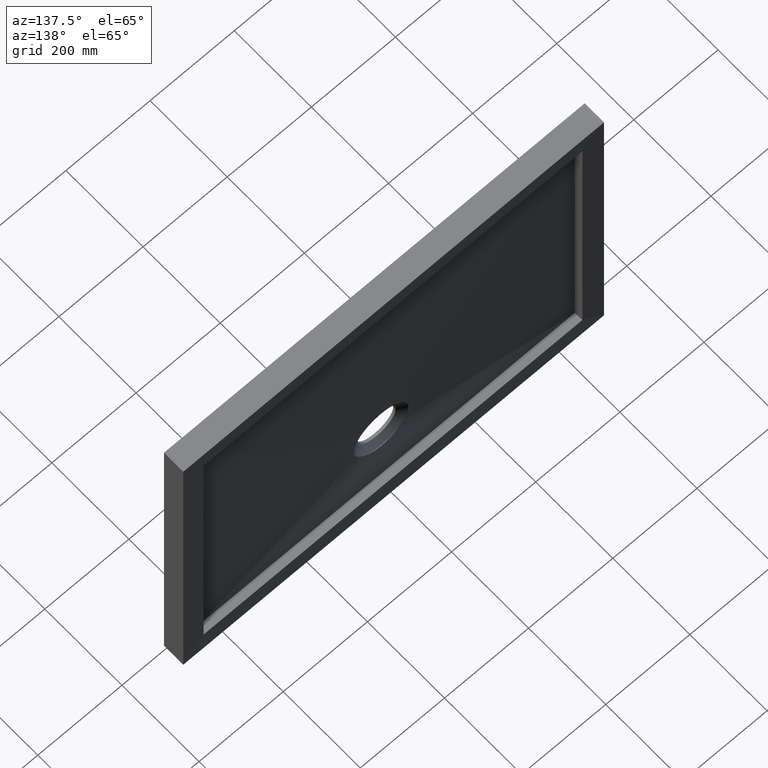
[diagram: clean part render]
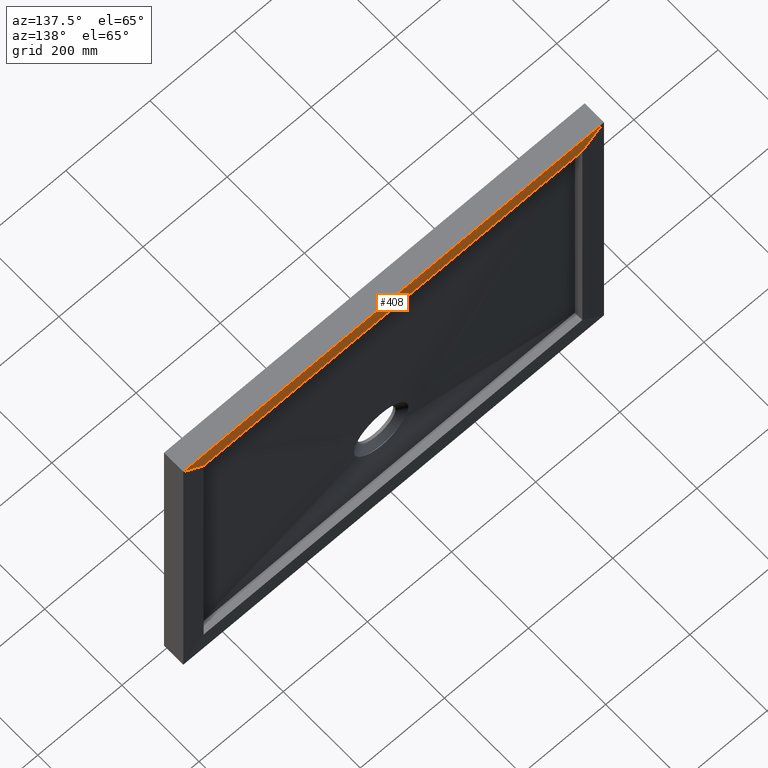
[diagram: same view with one face highlighted and labeled with its STEP entity id]
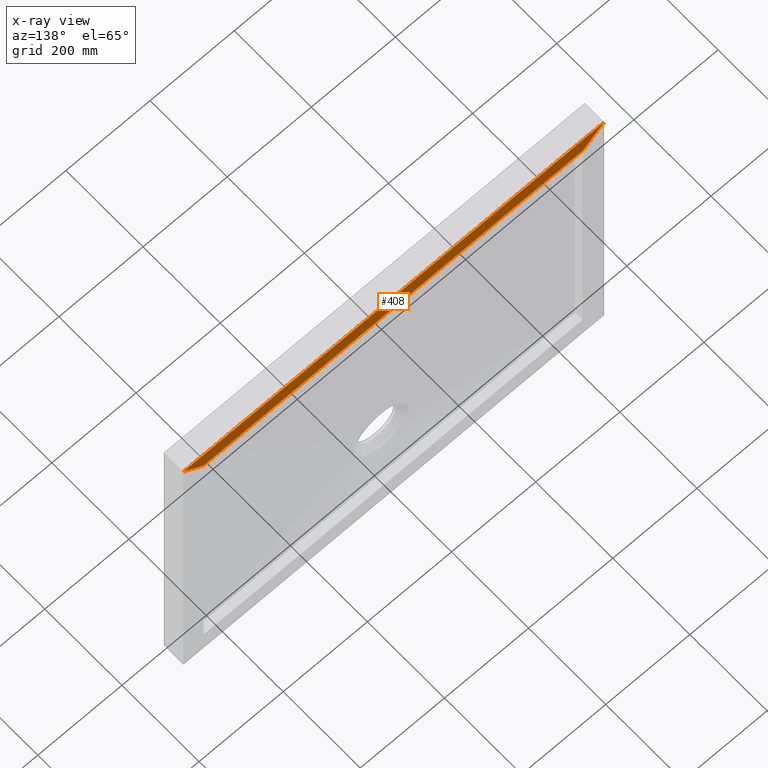
[diagram: x-ray of the same camera — body ghosted, the highlighted face saturated]
A machine part, auxiliary view. The second image highlights one B-rep face of the part: STEP entity #408.
The next image is the same camera in x-ray: the body ghosted, the highlighted face saturated — about 0% of this face is hidden behind the body in this view.
In plain terms, the highlighted planar face has unit normal (0, 0.9994, -0.0349).
Its self-contained STEP definition (entity closure, byte-faithful):
#27 = DIRECTION ( 'NONE',  ( -0.7068913075831633200, -0.02468518840782799400, -0.7068913075831639900 ) ) ;
#30 = VERTEX_POINT ( 'NONE', #982 ) ;
#56 = DIRECTION ( 'NONE',  ( -0.7068913075831636500, 0.02468518840782798000, 0.7068913075831636500 ) ) ;
#57 = ORIENTED_EDGE ( 'NONE', *, *, #162, .F. ) ;
#81 = CARTESIAN_POINT ( 'NONE',  ( -449.9999999999997700, 48.25745360236189200, 350.0000000000002300 ) ) ;
#83 = LINE ( 'NONE', #81, #134 ) ;
#101 = CARTESIAN_POINT ( 'NONE',  ( 450.0000000000002300, 48.25745360236189200, 350.0000000000002300 ) ) ;
#134 = VECTOR ( 'NONE', #56, 1000.000000000000100 ) ;
#147 = ORIENTED_EDGE ( 'NONE', *, *, #200, .T. ) ;
#162 = EDGE_CURVE ( 'NONE', #30, #563, #475, .T. ) ;
#194 = VECTOR ( 'NONE', #27, 1000.000000000000100 ) ;
#199 = PLANE ( 'NONE',  #428 ) ;
#200 = EDGE_CURVE ( 'NONE', #30, #842, #83, .T. ) ;
#288 = ORIENTED_EDGE ( 'NONE', *, *, #762, .T. ) ;
#309 = VERTEX_POINT ( 'NONE', #673 ) ;
#346 = CARTESIAN_POINT ( 'NONE',  ( -499.9000000000047500, 50.00000000000000000, 399.9000000000051500 ) ) ;
#408 = ADVANCED_FACE ( 'NONE', ( #850 ), #199, .T. ) ;
#428 = AXIS2_PLACEMENT_3D ( 'NONE', #861, #1031, #964 ) ;
#429 = CARTESIAN_POINT ( 'NONE',  ( 0.2742113370290955000, 32.55268300197024400, -99.72578866297126900 ) ) ;
#475 = LINE ( 'NONE', #101, #929 ) ;
#519 = EDGE_LOOP ( 'NONE', ( #147, #776, #288, #57 ) ) ;
#563 = VERTEX_POINT ( 'NONE', #725 ) ;
#651 = CARTESIAN_POINT ( 'NONE',  ( -449.9999999999997700, 50.00000000000000000, 399.9000000000051500 ) ) ;
#659 = LINE ( 'NONE', #429, #194 ) ;
#673 = CARTESIAN_POINT ( 'NONE',  ( 499.9000000000050900, 50.00000000000000000, 399.9000000000051500 ) ) ;
#689 = LINE ( 'NONE', #651, #961 ) ;
#725 = CARTESIAN_POINT ( 'NONE',  ( 450.0000000000002300, 48.25745360236189200, 350.0000000000002300 ) ) ;
#762 = EDGE_CURVE ( 'NONE', #309, #563, #659, .T. ) ;
#776 = ORIENTED_EDGE ( 'NONE', *, *, #1010, .F. ) ;
#791 = DIRECTION ( 'NONE',  ( 1.000000000000000000, 0.0000000000000000000, 0.0000000000000000000 ) ) ;
#842 = VERTEX_POINT ( 'NONE', #346 ) ;
#850 = FACE_OUTER_BOUND ( 'NONE', #519, .T. ) ;
#861 = CARTESIAN_POINT ( 'NONE',  ( -449.9999999999997700, 48.25745360236189200, 350.0000000000002300 ) ) ;
#905 = DIRECTION ( 'NONE',  ( -1.000000000000000000, 0.0000000000000000000, 0.0000000000000000000 ) ) ;
#929 = VECTOR ( 'NONE', #791, 1000.000000000000000 ) ;
#961 = VECTOR ( 'NONE', #905, 1000.000000000000000 ) ;
#964 = DIRECTION ( 'NONE',  ( -1.000000000000000000, 0.0000000000000000000, -0.0000000000000000000 ) ) ;
#982 = CARTESIAN_POINT ( 'NONE',  ( -449.9999999999997700, 48.25745360236189200, 350.0000000000002300 ) ) ;
#1010 = EDGE_CURVE ( 'NONE', #309, #842, #689, .T. ) ;
#1031 = DIRECTION ( 'NONE',  ( 0.0000000000000000000, 0.9993908270190959800, -0.03489949670249557800 ) ) ;